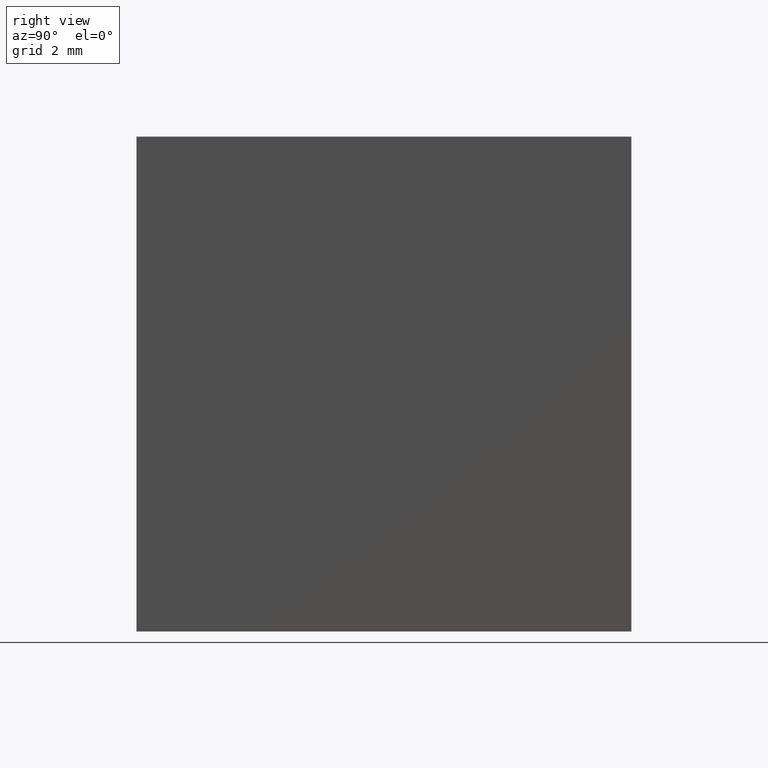
[diagram: clean part render]
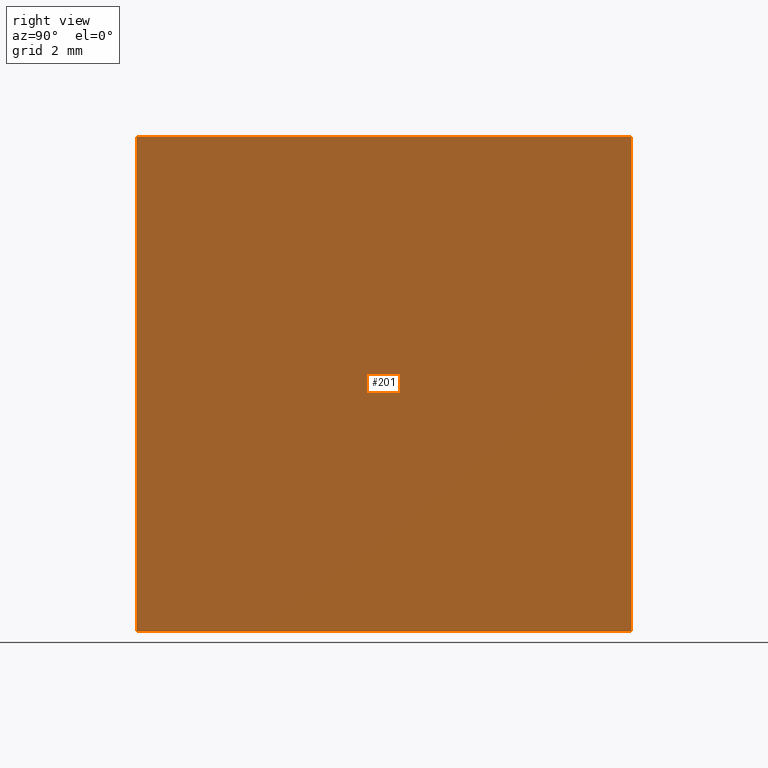
[diagram: same view with one face highlighted and labeled with its STEP entity id]
A machine part, right view. The second image highlights one B-rep face of the part: STEP entity #201.
In plain terms, the highlighted planar face has unit normal (-1, 0, 0).
Its self-contained STEP definition (entity closure, byte-faithful):
#4 = CARTESIAN_POINT ( 'NONE',  ( 2.105204334851262800, 10.00000000000000000, -5.000000000000001800 ) ) ;
#6 = ORIENTED_EDGE ( 'NONE', *, *, #15, .T. ) ;
#12 = VECTOR ( 'NONE', #146, 1000.000000000000000 ) ;
#15 = EDGE_CURVE ( 'NONE', #167, #79, #118, .T. ) ;
#17 = LINE ( 'NONE', #46, #158 ) ;
#28 = CARTESIAN_POINT ( 'NONE',  ( 2.105204334851262800, 10.00000000000000000, -5.000000000000001800 ) ) ;
#30 = DIRECTION ( 'NONE',  ( 3.035766082959411900E-016, 0.0000000000000000000, 1.000000000000000000 ) ) ;
#36 = DIRECTION ( 'NONE',  ( -3.035766082959411900E-016, -0.0000000000000000000, -1.000000000000000000 ) ) ;
#46 = CARTESIAN_POINT ( 'NONE',  ( 2.105204334851265900, 10.00000000000000000, 5.000000000000000000 ) ) ;
#53 = DIRECTION ( 'NONE',  ( -0.0000000000000000000, -1.000000000000000000, -0.0000000000000000000 ) ) ;
#54 = LINE ( 'NONE', #135, #85 ) ;
#58 = ORIENTED_EDGE ( 'NONE', *, *, #194, .T. ) ;
#60 = FACE_OUTER_BOUND ( 'NONE', #186, .T. ) ;
#75 = DIRECTION ( 'NONE',  ( -1.000000000000000000, 0.0000000000000000000, 3.035766082959411900E-016 ) ) ;
#79 = VERTEX_POINT ( 'NONE', #204 ) ;
#85 = VECTOR ( 'NONE', #104, 1000.000000000000000 ) ;
#98 = VERTEX_POINT ( 'NONE', #189 ) ;
#104 = DIRECTION ( 'NONE',  ( -0.0000000000000000000, -1.000000000000000000, -0.0000000000000000000 ) ) ;
#108 = CARTESIAN_POINT ( 'NONE',  ( 2.105204334851262800, 0.0000000000000000000, -5.000000000000001800 ) ) ;
#113 = VECTOR ( 'NONE', #36, 1000.000000000000000 ) ;
#115 = LINE ( 'NONE', #4, #113 ) ;
#118 = LINE ( 'NONE', #108, #12 ) ;
#135 = CARTESIAN_POINT ( 'NONE',  ( 2.105204334851262800, 10.00000000000000000, -5.000000000000001800 ) ) ;
#139 = CARTESIAN_POINT ( 'NONE',  ( 2.105204334851265900, 0.0000000000000000000, 5.000000000000000000 ) ) ;
#146 = DIRECTION ( 'NONE',  ( -3.035766082959411900E-016, -0.0000000000000000000, -1.000000000000000000 ) ) ;
#150 = CARTESIAN_POINT ( 'NONE',  ( 2.105204334851265900, 10.00000000000000000, 5.000000000000000000 ) ) ;
#158 = VECTOR ( 'NONE', #53, 1000.000000000000000 ) ;
#162 = ORIENTED_EDGE ( 'NONE', *, *, #182, .F. ) ;
#167 = VERTEX_POINT ( 'NONE', #139 ) ;
#174 = VERTEX_POINT ( 'NONE', #150 ) ;
#182 = EDGE_CURVE ( 'NONE', #98, #79, #54, .T. ) ;
#184 = PLANE ( 'NONE',  #199 ) ;
#186 = EDGE_LOOP ( 'NONE', ( #6, #162, #196, #58 ) ) ;
#189 = CARTESIAN_POINT ( 'NONE',  ( 2.105204334851262800, 10.00000000000000000, -5.000000000000001800 ) ) ;
#194 = EDGE_CURVE ( 'NONE', #174, #167, #17, .T. ) ;
#196 = ORIENTED_EDGE ( 'NONE', *, *, #198, .F. ) ;
#198 = EDGE_CURVE ( 'NONE', #174, #98, #115, .T. ) ;
#199 = AXIS2_PLACEMENT_3D ( 'NONE', #28, #75, #30 ) ;
#201 = ADVANCED_FACE ( 'NONE', ( #60 ), #184, .F. ) ;
#204 = CARTESIAN_POINT ( 'NONE',  ( 2.105204334851262800, 0.0000000000000000000, -5.000000000000001800 ) ) ;